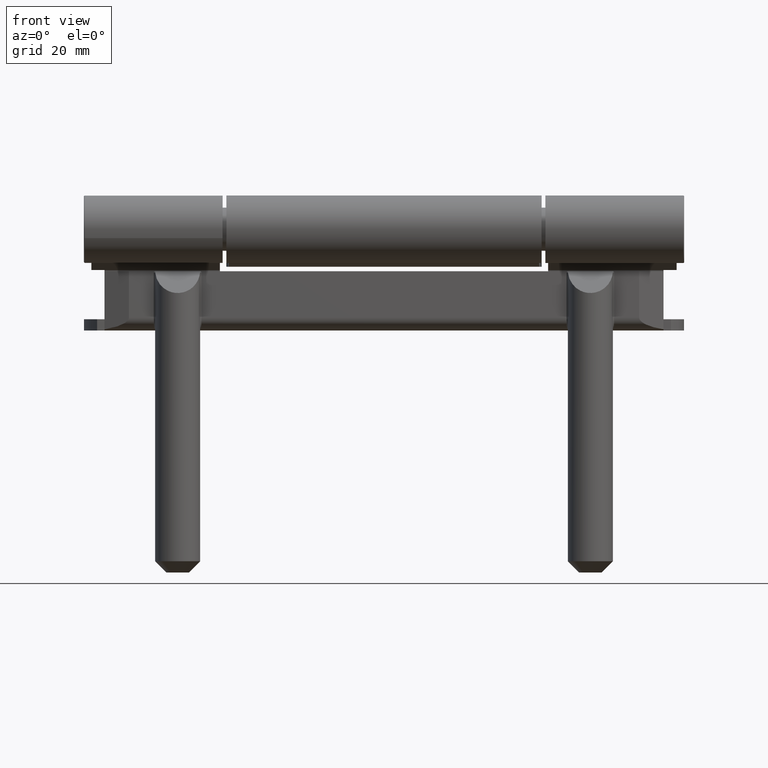
[diagram: clean part render]
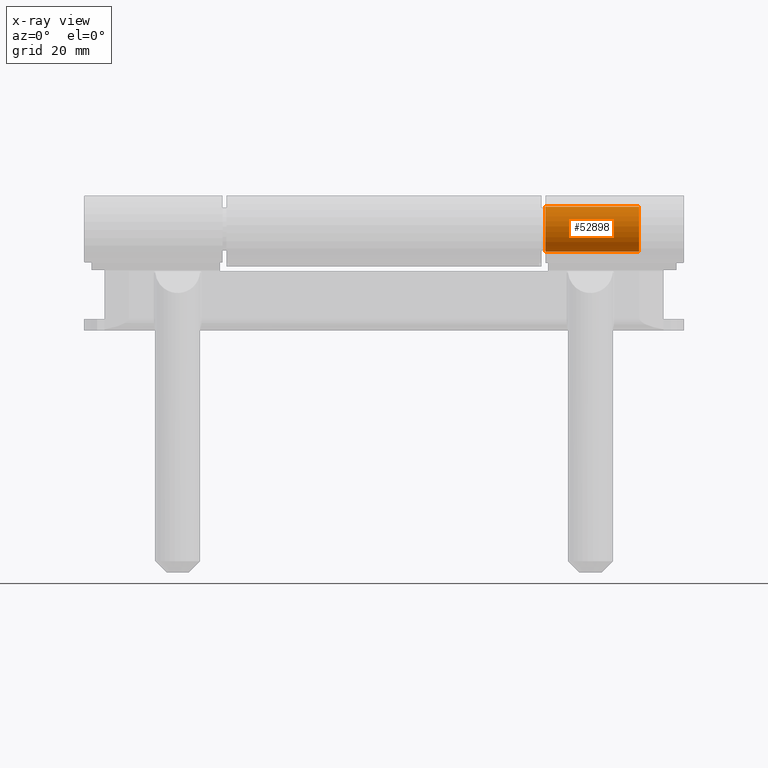
[diagram: x-ray — body ghosted, one internal face saturated and labeled with its STEP entity id]
A machine part, front view, then the same camera in x-ray: the body is ghosted and one INTERNAL B-rep face — a face not visible from any outside direction — is saturated and labeled: STEP entity #52898.
In plain terms, the highlighted cylindrical surface (edge-blend (fillet) strip) has radius 6 mm, axis along (-1, -0, -0).
Its self-contained STEP definition (entity closure, byte-faithful):
#1537 = VECTOR ( 'NONE', #10667, 1000.000000000000000 ) ;
#2334 = DIRECTION ( 'NONE',  ( -1.000000000000000000, -5.610155771161907473E-31, -6.170407202813867864E-31 ) ) ;
#4958 = EDGE_LOOP ( 'NONE', ( #23174, #44962, #46672, #51922 ) ) ;
#5804 = DIRECTION ( 'NONE',  ( -1.000000000000000000, -5.610155771161907473E-31, -6.170407202813867864E-31 ) ) ;
#6429 = CARTESIAN_POINT ( 'NONE',  ( 3.763665301682607514E-30, 0.000000000000000000, 6.000000000000005329 ) ) ;
#6940 = CARTESIAN_POINT ( 'NONE',  ( 25.49999999999999645, 0.000000000000000000, 0.000000000000000000 ) ) ;
#7060 = VERTEX_POINT ( 'NONE', #37905 ) ;
#7554 = CARTESIAN_POINT ( 'NONE',  ( 0.000000000000000000, 0.000000000000000000, 0.000000000000000000 ) ) ;
#10667 = DIRECTION ( 'NONE',  ( -1.000000000000000000, -5.610155771161907473E-31, -6.170407202813867864E-31 ) ) ;
#15657 = VERTEX_POINT ( 'NONE', #6429 ) ;
#18479 = EDGE_CURVE ( 'NONE', #51272, #15657, #28508, .T. ) ;
#18709 = FACE_OUTER_BOUND ( 'NONE', #4958, .T. ) ;
#18980 = CYLINDRICAL_SURFACE ( 'NONE', #48277, 6.000000000000005329 ) ;
#19206 = CARTESIAN_POINT ( 'NONE',  ( 24.99999999999999289, 0.000000000000000000, 0.000000000000000000 ) ) ;
#22710 = EDGE_CURVE ( 'NONE', #7060, #33788, #26546, .T. ) ;
#22758 = DIRECTION ( 'NONE',  ( 0.000000000000000000, 0.000000000000000000, 1.000000000000000000 ) ) ;
#23075 = CARTESIAN_POINT ( 'NONE',  ( 3.702244321688319843E-30, 7.347880794884044794E-16, -6.000000000000000000 ) ) ;
#23174 = ORIENTED_EDGE ( 'NONE', *, *, #22710, .F. ) ;
#23382 = CARTESIAN_POINT ( 'NONE',  ( 24.99999999999999289, -2.077016734757115390E-60, 6.000000000000005329 ) ) ;
#26182 = LINE ( 'NONE', #42470, #32966 ) ;
#26546 = CIRCLE ( 'NONE', #52121, 6.000000000000005329 ) ;
#27631 = DIRECTION ( 'NONE',  ( 6.272775502804340602E-31, 0.000000000000000000, 1.000000000000000000 ) ) ;
#28508 = CIRCLE ( 'NONE', #40423, 6.000000000000005329 ) ;
#32966 = VECTOR ( 'NONE', #5804, 1000.000000000000000 ) ;
#33788 = VERTEX_POINT ( 'NONE', #23382 ) ;
#36367 = EDGE_CURVE ( 'NONE', #7060, #51272, #51325, .T. ) ;
#37905 = CARTESIAN_POINT ( 'NONE',  ( 24.99999999999999289, 7.347880794884124666E-16, -6.000000000000005329 ) ) ;
#40423 = AXIS2_PLACEMENT_3D ( 'NONE', #7554, #47932, #27631 ) ;
#42470 = CARTESIAN_POINT ( 'NONE',  ( 25.49999999999999645, 0.000000000000000000, 6.000000000000005329 ) ) ;
#42770 = DIRECTION ( 'NONE',  ( 0.000000000000000000, 0.000000000000000000, 1.000000000000000000 ) ) ;
#44962 = ORIENTED_EDGE ( 'NONE', *, *, #36367, .T. ) ;
#46672 = ORIENTED_EDGE ( 'NONE', *, *, #18479, .T. ) ;
#47329 = CARTESIAN_POINT ( 'NONE',  ( 25.49999999999999645, 7.347880794884124666E-16, -6.000000000000005329 ) ) ;
#47932 = DIRECTION ( 'NONE',  ( -1.000000000000000000, -5.610155771161907473E-31, -6.170407202813867864E-31 ) ) ;
#48277 = AXIS2_PLACEMENT_3D ( 'NONE', #6940, #52132, #22758 ) ;
#48999 = EDGE_CURVE ( 'NONE', #33788, #15657, #26182, .T. ) ;
#51272 = VERTEX_POINT ( 'NONE', #23075 ) ;
#51325 = LINE ( 'NONE', #47329, #1537 ) ;
#51922 = ORIENTED_EDGE ( 'NONE', *, *, #48999, .F. ) ;
#52121 = AXIS2_PLACEMENT_3D ( 'NONE', #19206, #2334, #42770 ) ;
#52132 = DIRECTION ( 'NONE',  ( -1.000000000000000000, -5.610155771161907473E-31, -6.170407202813867864E-31 ) ) ;
#52898 = ADVANCED_FACE ( 'NONE', ( #18709 ), #18980, .F. ) ;